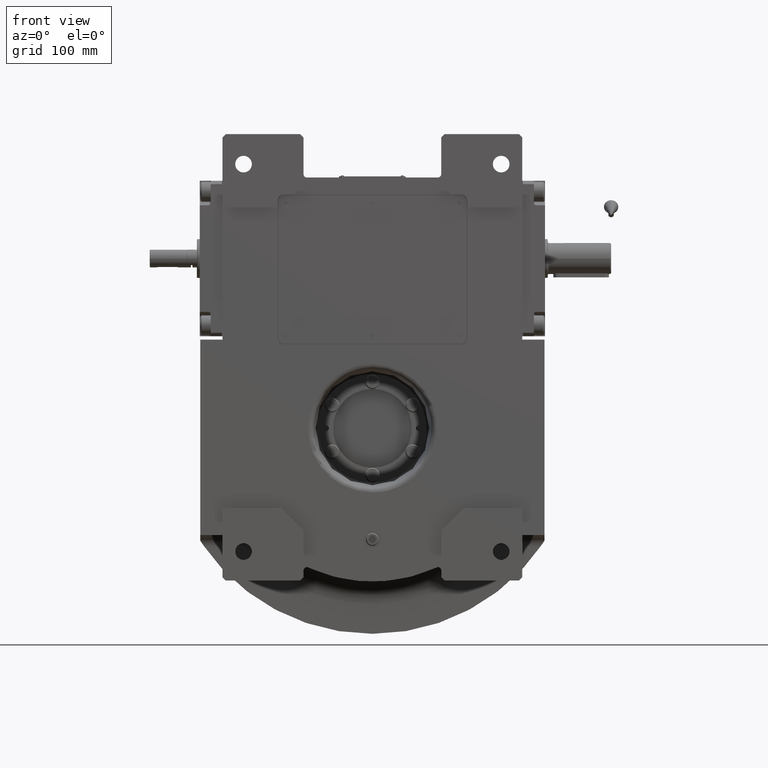
[diagram: clean part render]
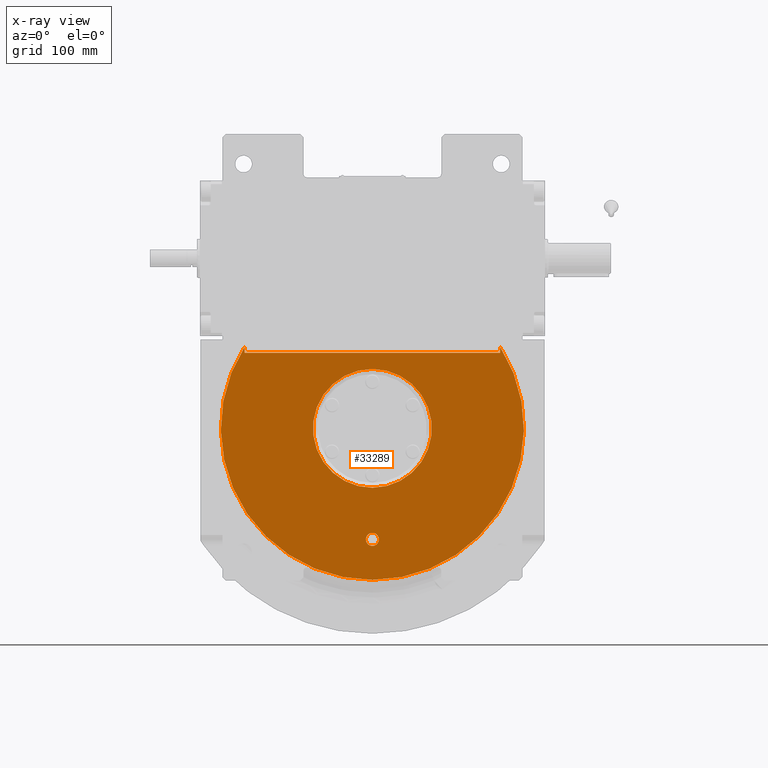
[diagram: x-ray — body ghosted, one internal face saturated and labeled with its STEP entity id]
A machine part, front view, then the same camera in x-ray: the body is ghosted and one INTERNAL B-rep face — a face not visible from any outside direction — is saturated and labeled: STEP entity #33289.
In plain terms, the highlighted planar face has unit normal (0, -1, 0).
Its self-contained STEP definition (entity closure, byte-faithful):
#757 = EDGE_CURVE ( 'NONE', #11543, #44534, #35588, .T. ) ;
#1166 = CARTESIAN_POINT ( 'NONE',  ( -115.0000000000000000, -63.00000000000000000, 0.000000000000000000 ) ) ;
#3088 = AXIS2_PLACEMENT_3D ( 'NONE', #48327, #17660, #65361 ) ;
#3474 = ORIENTED_EDGE ( 'NONE', *, *, #757, .T. ) ;
#4237 = ORIENTED_EDGE ( 'NONE', *, *, #46559, .T. ) ;
#5759 = CARTESIAN_POINT ( 'NONE',  ( 0.000000000000000000, -63.00000000000000000, -100.0000000000000000 ) ) ;
#7379 = EDGE_LOOP ( 'NONE', ( #30048, #4237 ) ) ;
#7706 = AXIS2_PLACEMENT_3D ( 'NONE', #61138, #45120, #18304 ) ;
#11543 = VERTEX_POINT ( 'NONE', #46751 ) ;
#14510 = VERTEX_POINT ( 'NONE', #64586 ) ;
#14587 = CARTESIAN_POINT ( 'NONE',  ( -115.0000000000000000, -63.00000000000000000, 67.99999999999997158 ) ) ;
#14671 = AXIS2_PLACEMENT_3D ( 'NONE', #64000, #37215, #58779 ) ;
#15844 = EDGE_CURVE ( 'NONE', #52482, #44534, #54174, .T. ) ;
#16222 = DIRECTION ( 'NONE',  ( -1.209434443846979996E-15, -1.000000000000000000, 1.209434443846979996E-15 ) ) ;
#17660 = DIRECTION ( 'NONE',  ( 0.000000000000000000, -1.000000000000000000, 0.000000000000000000 ) ) ;
#18304 = DIRECTION ( 'NONE',  ( 0.000000000000000000, 0.000000000000000000, 1.000000000000000000 ) ) ;
#18320 = CARTESIAN_POINT ( 'NONE',  ( 0.000000000000000000, -62.99999999999998579, 67.99999999999997158 ) ) ;
#19315 = FACE_BOUND ( 'NONE', #7379, .T. ) ;
#21588 = DIRECTION ( 'NONE',  ( 0.000000000000000000, 1.000000000000000000, 0.000000000000000000 ) ) ;
#22618 = CARTESIAN_POINT ( 'NONE',  ( 0.000000000000000000, -63.00000000000000000, 0.000000000000000000 ) ) ;
#23357 = VERTEX_POINT ( 'NONE', #66107 ) ;
#23807 = AXIS2_PLACEMENT_3D ( 'NONE', #24634, #40313, #41009 ) ;
#24634 = CARTESIAN_POINT ( 'NONE',  ( 0.000000000000000000, -63.00000000000000000, 0.000000000000000000 ) ) ;
#24884 = FACE_OUTER_BOUND ( 'NONE', #65045, .T. ) ;
#26137 = AXIS2_PLACEMENT_3D ( 'NONE', #5759, #16222, #42342 ) ;
#28503 = EDGE_CURVE ( 'NONE', #41375, #52482, #45139, .T. ) ;
#29827 = CIRCLE ( 'NONE', #3088, 5.875000000000000000 ) ;
#30048 = ORIENTED_EDGE ( 'NONE', *, *, #43639, .T. ) ;
#30147 = DIRECTION ( 'NONE',  ( -1.000000000000000000, 0.000000000000000000, 0.000000000000000000 ) ) ;
#33289 = ADVANCED_FACE ( 'NONE', ( #24884, #19315, #35695 ), #35353, .F. ) ;
#33977 = DIRECTION ( 'NONE',  ( 0.000000000000000000, 0.000000000000000000, 1.000000000000000000 ) ) ;
#34098 = EDGE_CURVE ( 'NONE', #14510, #23357, #54941, .T. ) ;
#34625 = VECTOR ( 'NONE', #30147, 1000.000000000000000 ) ;
#35353 = PLANE ( 'NONE',  #38181 ) ;
#35588 = CIRCLE ( 'NONE', #7706, 136.5000000000000000 ) ;
#35695 = FACE_BOUND ( 'NONE', #58246, .T. ) ;
#35945 = ORIENTED_EDGE ( 'NONE', *, *, #53196, .T. ) ;
#36013 = CARTESIAN_POINT ( 'NONE',  ( 115.0000000000000000, -63.00000000000000000, 67.99999999999997158 ) ) ;
#37215 = DIRECTION ( 'NONE',  ( 0.000000000000000000, 1.000000000000000000, 0.000000000000000000 ) ) ;
#38181 = AXIS2_PLACEMENT_3D ( 'NONE', #67702, #40565, #46136 ) ;
#38434 = CARTESIAN_POINT ( 'NONE',  ( -5.875000000000000000, -63.00000000000000000, -100.0000000000000000 ) ) ;
#40313 = DIRECTION ( 'NONE',  ( 0.000000000000000000, 1.000000000000000000, 0.000000000000000000 ) ) ;
#40565 = DIRECTION ( 'NONE',  ( 0.000000000000000000, -1.000000000000000000, 1.836909530733564901E-16 ) ) ;
#41009 = DIRECTION ( 'NONE',  ( 0.000000000000000000, 0.000000000000000000, 1.000000000000000000 ) ) ;
#41375 = VERTEX_POINT ( 'NONE', #36013 ) ;
#42342 = DIRECTION ( 'NONE',  ( 1.000000000000000000, -2.362176648138630895E-15, 0.000000000000000000 ) ) ;
#43639 = EDGE_CURVE ( 'NONE', #55347, #62029, #56188, .T. ) ;
#44534 = VERTEX_POINT ( 'NONE', #57167 ) ;
#44589 = VECTOR ( 'NONE', #53617, 1000.000000000000000 ) ;
#44814 = ORIENTED_EDGE ( 'NONE', *, *, #28503, .F. ) ;
#45120 = DIRECTION ( 'NONE',  ( 0.000000000000000000, 1.000000000000000000, 0.000000000000000000 ) ) ;
#45139 = LINE ( 'NONE', #18320, #34625 ) ;
#46136 = DIRECTION ( 'NONE',  ( 0.000000000000000000, 1.836909530733564901E-16, 1.000000000000000000 ) ) ;
#46293 = ORIENTED_EDGE ( 'NONE', *, *, #50684, .T. ) ;
#46559 = EDGE_CURVE ( 'NONE', #62029, #55347, #29827, .T. ) ;
#46751 = CARTESIAN_POINT ( 'NONE',  ( 0.000000000000000000, -63.00000000000000000, -136.5000000000000000 ) ) ;
#47430 = ORIENTED_EDGE ( 'NONE', *, *, #51164, .F. ) ;
#48327 = CARTESIAN_POINT ( 'NONE',  ( 0.000000000000000000, -63.00000000000000000, -100.0000000000000000 ) ) ;
#49147 = ORIENTED_EDGE ( 'NONE', *, *, #34098, .F. ) ;
#50684 = EDGE_CURVE ( 'NONE', #59537, #11543, #58992, .T. ) ;
#51012 = VECTOR ( 'NONE', #33977, 1000.000000000000000 ) ;
#51164 = EDGE_CURVE ( 'NONE', #23357, #14510, #54710, .T. ) ;
#52482 = VERTEX_POINT ( 'NONE', #14587 ) ;
#53196 = EDGE_CURVE ( 'NONE', #41375, #59537, #60547, .T. ) ;
#53617 = DIRECTION ( 'NONE',  ( 0.000000000000000000, 0.000000000000000000, 1.000000000000000000 ) ) ;
#53800 = CARTESIAN_POINT ( 'NONE',  ( 5.875000000000000000, -63.00000000000000000, -100.0000000000000000 ) ) ;
#54174 = LINE ( 'NONE', #1166, #51012 ) ;
#54710 = CIRCLE ( 'NONE', #14671, 53.50000000000000000 ) ;
#54941 = CIRCLE ( 'NONE', #23807, 53.50000000000000000 ) ;
#54981 = CARTESIAN_POINT ( 'NONE',  ( 115.0000000000000000, -63.00000000000000000, 0.000000000000000000 ) ) ;
#55347 = VERTEX_POINT ( 'NONE', #53800 ) ;
#56188 = CIRCLE ( 'NONE', #26137, 5.875000000000000000 ) ;
#57167 = CARTESIAN_POINT ( 'NONE',  ( -115.0000000000000000, -63.00000000000000000, 73.53400573884168523 ) ) ;
#58013 = CARTESIAN_POINT ( 'NONE',  ( 115.0000000000000000, -63.00000000000000000, 73.53400573884168523 ) ) ;
#58246 = EDGE_LOOP ( 'NONE', ( #49147, #47430 ) ) ;
#58779 = DIRECTION ( 'NONE',  ( 0.000000000000000000, 0.000000000000000000, 1.000000000000000000 ) ) ;
#58992 = CIRCLE ( 'NONE', #61185, 136.5000000000000000 ) ;
#59537 = VERTEX_POINT ( 'NONE', #58013 ) ;
#60547 = LINE ( 'NONE', #54981, #44589 ) ;
#60876 = ORIENTED_EDGE ( 'NONE', *, *, #15844, .F. ) ;
#61138 = CARTESIAN_POINT ( 'NONE',  ( 0.000000000000000000, -63.00000000000000000, 0.000000000000000000 ) ) ;
#61185 = AXIS2_PLACEMENT_3D ( 'NONE', #22618, #21588, #65105 ) ;
#62029 = VERTEX_POINT ( 'NONE', #38434 ) ;
#64000 = CARTESIAN_POINT ( 'NONE',  ( 0.000000000000000000, -63.00000000000000000, 0.000000000000000000 ) ) ;
#64586 = CARTESIAN_POINT ( 'NONE',  ( 0.000000000000000000, -63.00000000000000000, -53.50000000000000000 ) ) ;
#65045 = EDGE_LOOP ( 'NONE', ( #60876, #44814, #35945, #46293, #3474 ) ) ;
#65105 = DIRECTION ( 'NONE',  ( 0.000000000000000000, 0.000000000000000000, 1.000000000000000000 ) ) ;
#65361 = DIRECTION ( 'NONE',  ( -1.000000000000000000, 0.000000000000000000, 0.000000000000000000 ) ) ;
#66107 = CARTESIAN_POINT ( 'NONE',  ( 6.551860375438339893E-15, -63.00000000000000000, 53.50000000000000000 ) ) ;
#67702 = CARTESIAN_POINT ( 'NONE',  ( 0.000000000000000000, -63.00000000000000000, 2.534751534906250014E-14 ) ) ;